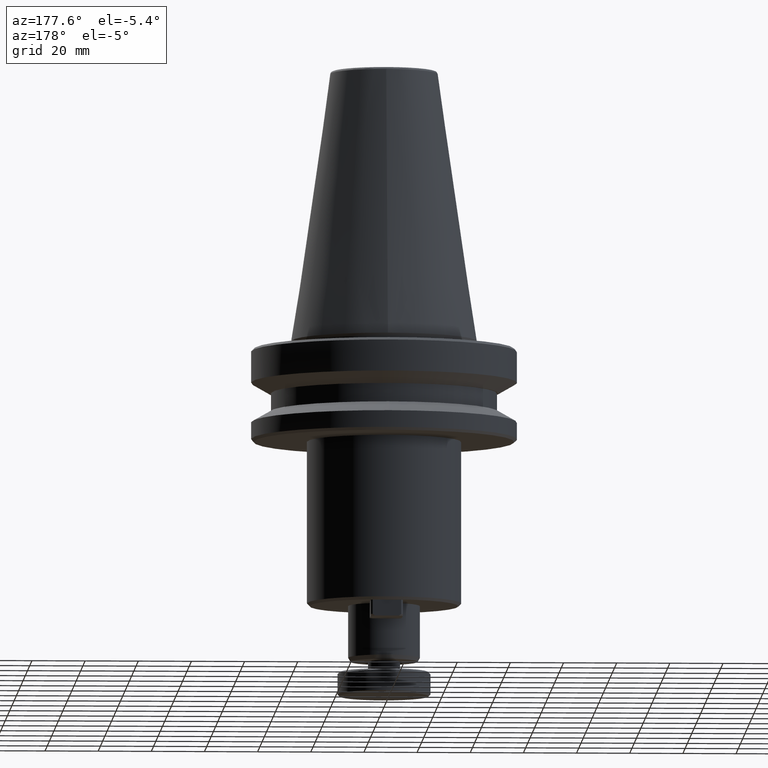
[diagram: clean part render]
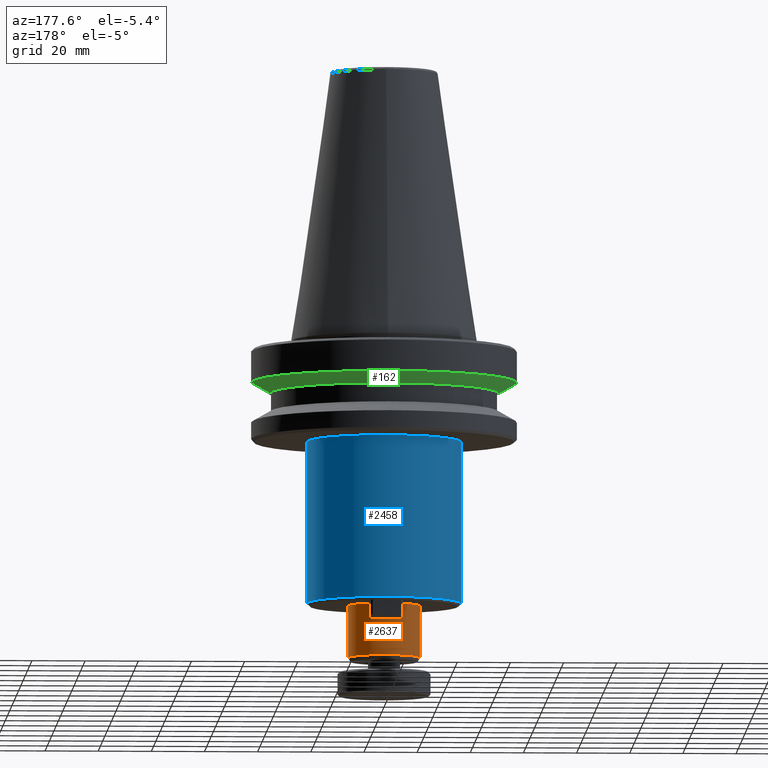
[diagram: same view with three faces highlighted in distinct colors, each labeled with its STEP entity id]
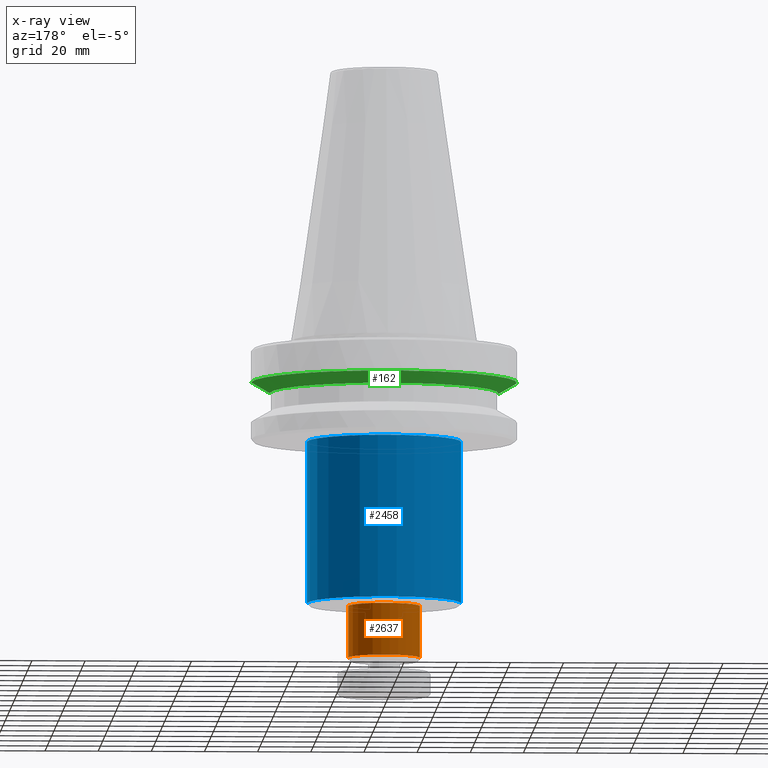
[diagram: x-ray of the same camera — body ghosted, the three highlighted faces saturated]
A machine part, auxiliary view with three faces highlighted in distinct colors.
The next image is the same camera in x-ray (body ghosted, the three faces saturated) — at least one of them is partly hidden behind the body in this view.
Their STEP definitions:

[orange] entity #2637 — the highlighted cylindrical surface (edge-blend (fillet) strip) has radius 13.5 mm, axis along (0, 0, 1).
#1 = AXIS2_PLACEMENT_3D ( 'NONE', #2598, #2593, #2588 ) ;
#89 = EDGE_LOOP ( 'NONE', ( #1565, #2614, #2675, #550 ) ) ;
#120 = CARTESIAN_POINT ( 'NONE',  ( 13.50000000000002100, 0.0000000000000000000, -119.5277568135664700 ) ) ;
#173 = DIRECTION ( 'NONE',  ( 1.000000000000000000, 0.0000000000000000000, 0.0000000000000000000 ) ) ;
#175 = DIRECTION ( 'NONE',  ( 0.0000000000000000000, 0.0000000000000000000, 1.000000000000000000 ) ) ;
#177 = CARTESIAN_POINT ( 'NONE',  ( 0.0000000000000000000, 0.0000000000000000000, -99.99999999999998600 ) ) ;
#510 = CIRCLE ( 'NONE', #1, 13.50000000000000900 ) ;
#550 = ORIENTED_EDGE ( 'NONE', *, *, #1341, .F. ) ;
#702 = DIRECTION ( 'NONE',  ( 0.0000000000000000000, 0.0000000000000000000, 1.000000000000000000 ) ) ;
#730 = CARTESIAN_POINT ( 'NONE',  ( 13.50000000000000900, 0.0000000000000000000, 118.5507178974871000 ) ) ;
#762 = CARTESIAN_POINT ( 'NONE',  ( -13.50000000000002100, 1.653273178848929200E-015, -119.5277568135664700 ) ) ;
#798 = CIRCLE ( 'NONE', #1750, 13.50000000000000900 ) ;
#825 = LINE ( 'NONE', #1817, #1337 ) ;
#835 = VERTEX_POINT ( 'NONE', #1047 ) ;
#1047 = CARTESIAN_POINT ( 'NONE',  ( 13.50000000000000900, 0.0000000000000000000, -99.99999999999998600 ) ) ;
#1258 = VERTEX_POINT ( 'NONE', #762 ) ;
#1337 = VECTOR ( 'NONE', #1821, 1000.000000000000000 ) ;
#1341 = EDGE_CURVE ( 'NONE', #1779, #835, #2381, .T. ) ;
#1565 = ORIENTED_EDGE ( 'NONE', *, *, #2168, .T. ) ;
#1687 = EDGE_CURVE ( 'NONE', #835, #2204, #798, .T. ) ;
#1750 = AXIS2_PLACEMENT_3D ( 'NONE', #177, #175, #173 ) ;
#1779 = VERTEX_POINT ( 'NONE', #120 ) ;
#1817 = CARTESIAN_POINT ( 'NONE',  ( -13.50000000000000900, 1.653273178848927900E-015, 118.5507178974871000 ) ) ;
#1821 = DIRECTION ( 'NONE',  ( 0.0000000000000000000, 0.0000000000000000000, 1.000000000000000000 ) ) ;
#1825 = DIRECTION ( 'NONE',  ( 1.000000000000000000, 0.0000000000000000000, 0.0000000000000000000 ) ) ;
#1827 = DIRECTION ( 'NONE',  ( 0.0000000000000000000, 0.0000000000000000000, 1.000000000000000000 ) ) ;
#1829 = CARTESIAN_POINT ( 'NONE',  ( 0.0000000000000000000, 0.0000000000000000000, 118.5507178974871000 ) ) ;
#1989 = CYLINDRICAL_SURFACE ( 'NONE', #2378, 13.50000000000000900 ) ;
#2136 = FACE_OUTER_BOUND ( 'NONE', #89, .T. ) ;
#2168 = EDGE_CURVE ( 'NONE', #1779, #1258, #510, .T. ) ;
#2204 = VERTEX_POINT ( 'NONE', #2537 ) ;
#2310 = VECTOR ( 'NONE', #702, 1000.000000000000000 ) ;
#2378 = AXIS2_PLACEMENT_3D ( 'NONE', #1829, #1827, #1825 ) ;
#2381 = LINE ( 'NONE', #730, #2310 ) ;
#2537 = CARTESIAN_POINT ( 'NONE',  ( -13.50000000000000900, 1.653273178848927900E-015, -99.99999999999998600 ) ) ;
#2588 = DIRECTION ( 'NONE',  ( 1.000000000000000000, 0.0000000000000000000, 0.0000000000000000000 ) ) ;
#2593 = DIRECTION ( 'NONE',  ( 0.0000000000000000000, 0.0000000000000000000, 1.000000000000000000 ) ) ;
#2598 = CARTESIAN_POINT ( 'NONE',  ( 0.0000000000000000000, 0.0000000000000000000, -119.5277568135664700 ) ) ;
#2614 = ORIENTED_EDGE ( 'NONE', *, *, #2643, .T. ) ;
#2637 = ADVANCED_FACE ( 'NONE', ( #2136 ), #1989, .T. ) ;
#2643 = EDGE_CURVE ( 'NONE', #1258, #2204, #825, .T. ) ;
#2675 = ORIENTED_EDGE ( 'NONE', *, *, #1687, .F. ) ;

[blue] entity #2458 — the highlighted cylindrical surface (partial cylindrical patch) has radius 29 mm, axis along (0, 0, 1).
#6 = LINE ( 'NONE', #1743, #963 ) ;
#82 = CARTESIAN_POINT ( 'NONE',  ( -29.00000000000000000, 3.551475717527324000E-015, -37.99999999999999300 ) ) ;
#240 = CARTESIAN_POINT ( 'NONE',  ( 0.0000000000000000000, 0.0000000000000000000, -98.99999999999998600 ) ) ;
#278 = DIRECTION ( 'NONE',  ( 0.0000000000000000000, 0.0000000000000000000, 1.000000000000000000 ) ) ;
#625 = CARTESIAN_POINT ( 'NONE',  ( -29.00000000000001400, 3.551475717527325600E-015, -98.99999999999998600 ) ) ;
#664 = CIRCLE ( 'NONE', #1612, 29.00000000000000000 ) ;
#734 = CYLINDRICAL_SURFACE ( 'NONE', #1831, 29.00000000000000000 ) ;
#740 = ORIENTED_EDGE ( 'NONE', *, *, #1004, .T. ) ;
#861 = DIRECTION ( 'NONE',  ( 0.0000000000000000000, 0.0000000000000000000, 1.000000000000000000 ) ) ;
#901 = DIRECTION ( 'NONE',  ( 1.000000000000000000, 0.0000000000000000000, 0.0000000000000000000 ) ) ;
#903 = DIRECTION ( 'NONE',  ( -0.0000000000000000000, -0.0000000000000000000, -1.000000000000000000 ) ) ;
#904 = CARTESIAN_POINT ( 'NONE',  ( 0.0000000000000000000, 0.0000000000000000000, -37.99999999999999300 ) ) ;
#963 = VECTOR ( 'NONE', #861, 1000.000000000000000 ) ;
#1004 = EDGE_CURVE ( 'NONE', #1836, #2164, #2279, .T. ) ;
#1197 = DIRECTION ( 'NONE',  ( 1.000000000000000000, 0.0000000000000000000, 0.0000000000000000000 ) ) ;
#1301 = ORIENTED_EDGE ( 'NONE', *, *, #2094, .T. ) ;
#1536 = VERTEX_POINT ( 'NONE', #625 ) ;
#1568 = LINE ( 'NONE', #1969, #2680 ) ;
#1612 = AXIS2_PLACEMENT_3D ( 'NONE', #240, #278, #1197 ) ;
#1743 = CARTESIAN_POINT ( 'NONE',  ( -29.00000000000000000, 3.551475717527324000E-015, 118.5507178974871000 ) ) ;
#1831 = AXIS2_PLACEMENT_3D ( 'NONE', #2166, #2158, #2148 ) ;
#1836 = VERTEX_POINT ( 'NONE', #82 ) ;
#1902 = DIRECTION ( 'NONE',  ( 0.0000000000000000000, 0.0000000000000000000, 1.000000000000000000 ) ) ;
#1956 = ORIENTED_EDGE ( 'NONE', *, *, #2079, .T. ) ;
#1969 = CARTESIAN_POINT ( 'NONE',  ( 29.00000000000000000, 0.0000000000000000000, 118.5507178974871000 ) ) ;
#2052 = CARTESIAN_POINT ( 'NONE',  ( 29.00000000000001400, 0.0000000000000000000, -98.99999999999998600 ) ) ;
#2079 = EDGE_CURVE ( 'NONE', #2545, #1536, #664, .T. ) ;
#2094 = EDGE_CURVE ( 'NONE', #1536, #1836, #6, .T. ) ;
#2129 = ORIENTED_EDGE ( 'NONE', *, *, #2608, .F. ) ;
#2148 = DIRECTION ( 'NONE',  ( 1.000000000000000000, 0.0000000000000000000, 0.0000000000000000000 ) ) ;
#2158 = DIRECTION ( 'NONE',  ( 0.0000000000000000000, 0.0000000000000000000, 1.000000000000000000 ) ) ;
#2164 = VERTEX_POINT ( 'NONE', #2635 ) ;
#2166 = CARTESIAN_POINT ( 'NONE',  ( 0.0000000000000000000, 0.0000000000000000000, 118.5507178974871000 ) ) ;
#2278 = EDGE_LOOP ( 'NONE', ( #1956, #1301, #740, #2129 ) ) ;
#2279 = CIRCLE ( 'NONE', #2302, 29.00000000000000000 ) ;
#2302 = AXIS2_PLACEMENT_3D ( 'NONE', #904, #903, #901 ) ;
#2458 = ADVANCED_FACE ( 'NONE', ( #2540 ), #734, .T. ) ;
#2540 = FACE_OUTER_BOUND ( 'NONE', #2278, .T. ) ;
#2545 = VERTEX_POINT ( 'NONE', #2052 ) ;
#2608 = EDGE_CURVE ( 'NONE', #2545, #2164, #1568, .T. ) ;
#2635 = CARTESIAN_POINT ( 'NONE',  ( 29.00000000000000000, 0.0000000000000000000, -37.99999999999999300 ) ) ;
#2680 = VECTOR ( 'NONE', #1902, 1000.000000000000000 ) ;

[green] entity #162 — the highlighted conical surface has half-angle 60 deg.
#24 = FACE_OUTER_BOUND ( 'NONE', #107, .T. ) ;
#107 = EDGE_LOOP ( 'NONE', ( #2377, #2090, #1530, #2235 ) ) ;
#162 = ADVANCED_FACE ( 'NONE', ( #24 ), #405, .T. ) ;
#336 = VERTEX_POINT ( 'NONE', #1550 ) ;
#360 = EDGE_CURVE ( 'NONE', #336, #2169, #1877, .T. ) ;
#374 = CIRCLE ( 'NONE', #675, 50.00000000000000000 ) ;
#405 = CONICAL_SURFACE ( 'NONE', #1231, 50.00000000000001400, 1.047197551196598100 ) ;
#487 = VERTEX_POINT ( 'NONE', #1766 ) ;
#539 = LINE ( 'NONE', #2438, #2463 ) ;
#675 = AXIS2_PLACEMENT_3D ( 'NONE', #936, #935, #932 ) ;
#708 = CIRCLE ( 'NONE', #2224, 43.07217782649103600 ) ;
#788 = VERTEX_POINT ( 'NONE', #1121 ) ;
#932 = DIRECTION ( 'NONE',  ( 1.000000000000000000, 0.0000000000000000000, 0.0000000000000000000 ) ) ;
#935 = DIRECTION ( 'NONE',  ( 0.0000000000000000000, 0.0000000000000000000, 1.000000000000000000 ) ) ;
#936 = CARTESIAN_POINT ( 'NONE',  ( 0.0000000000000000000, 0.0000000000000000000, -15.70022000322675400 ) ) ;
#1001 = EDGE_CURVE ( 'NONE', #788, #2169, #374, .T. ) ;
#1121 = CARTESIAN_POINT ( 'NONE',  ( 50.00000000000000000, 0.0000000000000000000, -15.70022000322675400 ) ) ;
#1218 = VECTOR ( 'NONE', #1690, 1000.000000000000000 ) ;
#1231 = AXIS2_PLACEMENT_3D ( 'NONE', #2010, #2089, #2198 ) ;
#1530 = ORIENTED_EDGE ( 'NONE', *, *, #1001, .F. ) ;
#1550 = CARTESIAN_POINT ( 'NONE',  ( -43.07217782649103600, 5.699027233244276000E-015, -19.70000000000001000 ) ) ;
#1675 = DIRECTION ( 'NONE',  ( 1.000000000000000000, 0.0000000000000000000, 0.0000000000000000000 ) ) ;
#1677 = DIRECTION ( 'NONE',  ( 0.0000000000000000000, 0.0000000000000000000, 1.000000000000000000 ) ) ;
#1684 = CARTESIAN_POINT ( 'NONE',  ( 0.0000000000000000000, 0.0000000000000000000, -19.70000000000001000 ) ) ;
#1690 = DIRECTION ( 'NONE',  ( -0.8660254037844388200, 1.060575238724907200E-016, 0.4999999999999997200 ) ) ;
#1766 = CARTESIAN_POINT ( 'NONE',  ( 43.07217782649103600, 0.0000000000000000000, -19.70000000000001000 ) ) ;
#1877 = LINE ( 'NONE', #2269, #1218 ) ;
#2010 = CARTESIAN_POINT ( 'NONE',  ( 0.0000000000000000000, 0.0000000000000000000, -15.70022000322674700 ) ) ;
#2089 = DIRECTION ( 'NONE',  ( 0.0000000000000000000, 0.0000000000000000000, 1.000000000000000000 ) ) ;
#2090 = ORIENTED_EDGE ( 'NONE', *, *, #360, .T. ) ;
#2169 = VERTEX_POINT ( 'NONE', #2605 ) ;
#2198 = DIRECTION ( 'NONE',  ( 1.000000000000000000, 0.0000000000000000000, 0.0000000000000000000 ) ) ;
#2224 = AXIS2_PLACEMENT_3D ( 'NONE', #1684, #1677, #1675 ) ;
#2235 = ORIENTED_EDGE ( 'NONE', *, *, #2238, .F. ) ;
#2238 = EDGE_CURVE ( 'NONE', #487, #788, #539, .T. ) ;
#2269 = CARTESIAN_POINT ( 'NONE',  ( -50.00000000000001400, 6.123233995736767700E-015, -15.70022000322674700 ) ) ;
#2377 = ORIENTED_EDGE ( 'NONE', *, *, #2669, .T. ) ;
#2438 = CARTESIAN_POINT ( 'NONE',  ( 50.00000000000001400, 0.0000000000000000000, -15.70022000322674700 ) ) ;
#2463 = VECTOR ( 'NONE', #2538, 1000.000000000000000 ) ;
#2538 = DIRECTION ( 'NONE',  ( 0.8660254037844388200, 0.0000000000000000000, 0.4999999999999997200 ) ) ;
#2605 = CARTESIAN_POINT ( 'NONE',  ( -50.00000000000000000, 6.123233995736766100E-015, -15.70022000322675400 ) ) ;
#2669 = EDGE_CURVE ( 'NONE', #487, #336, #708, .T. ) ;